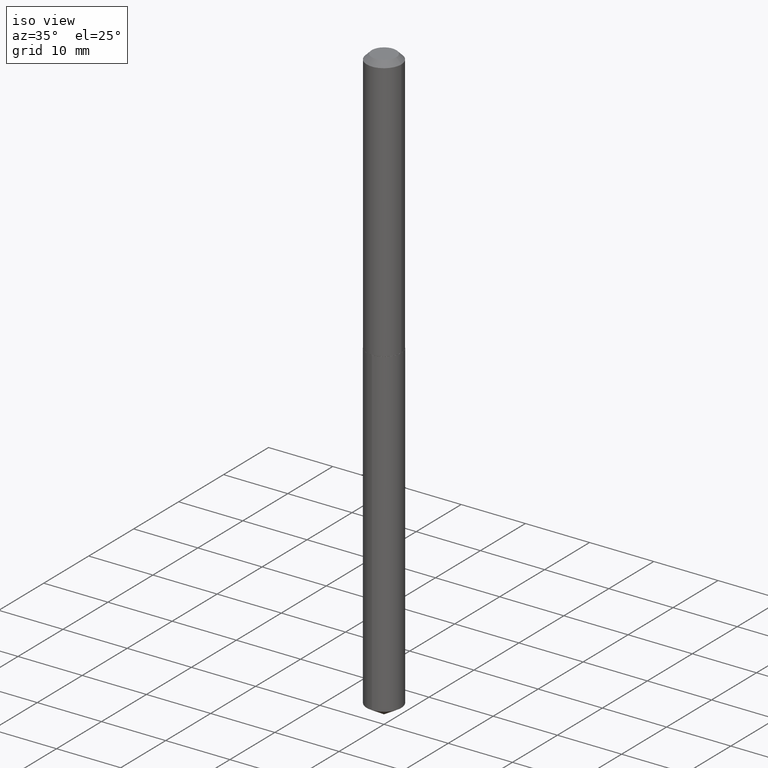
[diagram: clean part render]
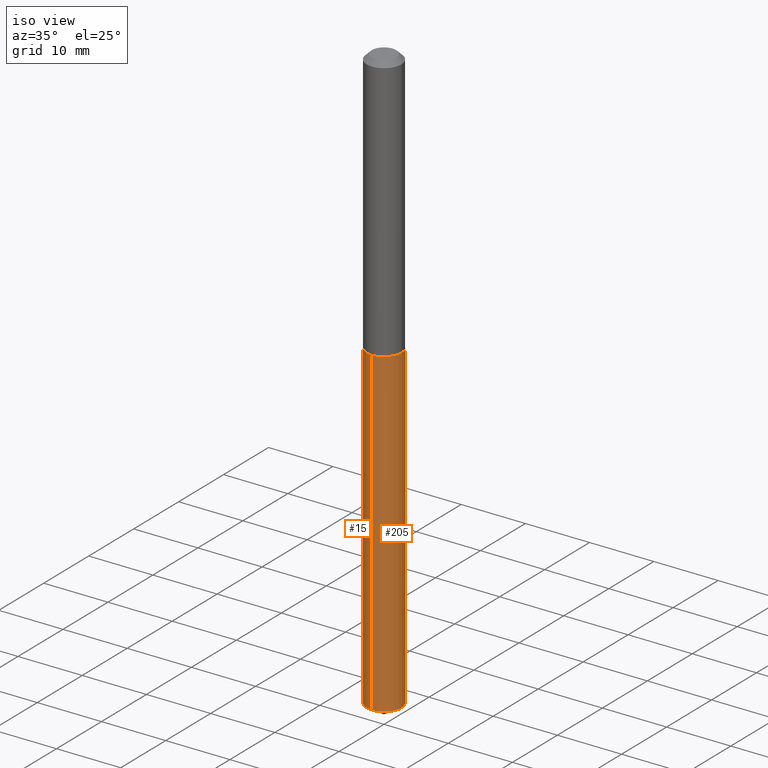
[diagram: same view with one multi-face feature highlighted, each face labeled with its STEP entity id]
A machine part, iso view. The highlighted faces form ONE feature: a constant-radius fillet chain: 2 tangent blend faces with common blend radius 2.7 mm. The faces share edges in the B-rep.
Their STEP definitions:
[1] entity #15 (Cylinder):
#1 = FACE_OUTER_BOUND ( 'NONE', #201, .T. ) ;
#10 = EDGE_CURVE ( 'NONE', #168, #197, #125, .T. ) ;
#11 = AXIS2_PLACEMENT_3D ( 'NONE', #97, #214, #69 ) ;
#14 = AXIS2_PLACEMENT_3D ( 'NONE', #47, #295, #145 ) ;
#15 = ADVANCED_FACE ( 'NONE', ( #1 ), #363, .T. ) ;
#16 = ORIENTED_EDGE ( 'NONE', *, *, #141, .F. ) ;
#38 = CARTESIAN_POINT ( 'NONE',  ( -7.422889326380102026E-16, -0.1063000000000056955, -1.629899999999999682 ) ) ;
#42 = VECTOR ( 'NONE', #309, 39.37007874015748143 ) ;
#43 = ORIENTED_EDGE ( 'NONE', *, *, #193, .T. ) ;
#47 = CARTESIAN_POINT ( 'NONE',  ( 3.985869607201153958E-29, -5.690765434180442948E-15, -1.629899999999999904 ) ) ;
#69 = DIRECTION ( 'NONE',  ( -6.982962677686265922E-15, -1.000000000000000000, 2.569941668545873170E-15 ) ) ;
#97 = CARTESIAN_POINT ( 'NONE',  ( 3.985869607201153958E-29, -5.690765434180442948E-15, -1.629899999999999904 ) ) ;
#106 = VERTEX_POINT ( 'NONE', #319 ) ;
#118 = DIRECTION ( 'NONE',  ( -2.445471064129030757E-29, 3.491478105338974747E-15, 1.000000000000000000 ) ) ;
#125 = LINE ( 'NONE', #241, #341 ) ;
#137 = CIRCLE ( 'NONE', #14, 0.1063000000000000056 ) ;
#141 = EDGE_CURVE ( 'NONE', #197, #294, #137, .T. ) ;
#145 = DIRECTION ( 'NONE',  ( -6.982962677686265922E-15, -1.000000000000000000, 2.569941668545873170E-15 ) ) ;
#146 = ORIENTED_EDGE ( 'NONE', *, *, #10, .F. ) ;
#168 = VERTEX_POINT ( 'NONE', #362 ) ;
#186 = EDGE_CURVE ( 'NONE', #106, #294, #189, .T. ) ;
#189 = LINE ( 'NONE', #242, #42 ) ;
#193 = EDGE_CURVE ( 'NONE', #168, #106, #277, .T. ) ;
#197 = VERTEX_POINT ( 'NONE', #343 ) ;
#201 = EDGE_LOOP ( 'NONE', ( #146, #43, #230, #16 ) ) ;
#214 = DIRECTION ( 'NONE',  ( -2.445471064129030757E-29, 3.491478105338975142E-15, 1.000000000000000000 ) ) ;
#230 = ORIENTED_EDGE ( 'NONE', *, *, #186, .T. ) ;
#241 = CARTESIAN_POINT ( 'NONE',  ( 7.553069281130262762E-16, 0.1062999999999943157, -1.629900000000000349 ) ) ;
#242 = CARTESIAN_POINT ( 'NONE',  ( -7.422889326380102026E-16, -0.1063000000000056955, -1.629899999999999682 ) ) ;
#277 = CIRCLE ( 'NONE', #361, 0.1063000000000000056 ) ;
#278 = DIRECTION ( 'NONE',  ( -6.982962677686265922E-15, -1.000000000000000000, 5.139883337091746339E-15 ) ) ;
#294 = VERTEX_POINT ( 'NONE', #38 ) ;
#295 = DIRECTION ( 'NONE',  ( -2.445471064129030757E-29, 3.491478105338975142E-15, 1.000000000000000000 ) ) ;
#304 = CARTESIAN_POINT ( 'NONE',  ( 8.797648208516961832E-29, -1.256069731792417687E-14, -3.597528516197369797 ) ) ;
#309 = DIRECTION ( 'NONE',  ( -2.445471064129030757E-29, 3.491478105338974747E-15, 1.000000000000000000 ) ) ;
#319 = CARTESIAN_POINT ( 'NONE',  ( -7.422889326379620821E-16, -0.1063000000000125511, -3.597528516197369353 ) ) ;
#341 = VECTOR ( 'NONE', #118, 39.37007874015748143 ) ;
#343 = CARTESIAN_POINT ( 'NONE',  ( 7.553069281130745939E-16, 0.1062999999999943018, -1.629900000000000349 ) ) ;
#361 = AXIS2_PLACEMENT_3D ( 'NONE', #304, #373, #278 ) ;
#362 = CARTESIAN_POINT ( 'NONE',  ( 7.553069281130741995E-16, 0.1062999999999874184, -3.597528516197370685 ) ) ;
#363 = CYLINDRICAL_SURFACE ( 'NONE', #11, 0.1063000000000000056 ) ;
#373 = DIRECTION ( 'NONE',  ( -2.445471064129030757E-29, 3.491478105338975142E-15, 1.000000000000000000 ) ) ;
[2] entity #205 (Cylinder):
#2 = DIRECTION ( 'NONE',  ( -2.445471064129030757E-29, 3.491478105338975142E-15, 1.000000000000000000 ) ) ;
#10 = EDGE_CURVE ( 'NONE', #168, #197, #125, .T. ) ;
#32 = DIRECTION ( 'NONE',  ( -2.445471064129030757E-29, 3.491478105338975142E-15, 1.000000000000000000 ) ) ;
#38 = CARTESIAN_POINT ( 'NONE',  ( -7.422889326380102026E-16, -0.1063000000000056955, -1.629899999999999682 ) ) ;
#42 = VECTOR ( 'NONE', #309, 39.37007874015748143 ) ;
#45 = EDGE_CURVE ( 'NONE', #294, #197, #246, .T. ) ;
#50 = EDGE_LOOP ( 'NONE', ( #233, #87, #340, #255 ) ) ;
#61 = AXIS2_PLACEMENT_3D ( 'NONE', #160, #32, #159 ) ;
#73 = CIRCLE ( 'NONE', #61, 0.1063000000000000056 ) ;
#78 = AXIS2_PLACEMENT_3D ( 'NONE', #200, #388, #109 ) ;
#87 = ORIENTED_EDGE ( 'NONE', *, *, #10, .T. ) ;
#106 = VERTEX_POINT ( 'NONE', #319 ) ;
#109 = DIRECTION ( 'NONE',  ( -6.982962677686265922E-15, -1.000000000000000000, 2.569941668545873170E-15 ) ) ;
#118 = DIRECTION ( 'NONE',  ( -2.445471064129030757E-29, 3.491478105338974747E-15, 1.000000000000000000 ) ) ;
#125 = LINE ( 'NONE', #241, #341 ) ;
#144 = AXIS2_PLACEMENT_3D ( 'NONE', #311, #2, #154 ) ;
#154 = DIRECTION ( 'NONE',  ( -6.982962677686265922E-15, -1.000000000000000000, 2.569941668545873170E-15 ) ) ;
#159 = DIRECTION ( 'NONE',  ( -6.982962677686265922E-15, -1.000000000000000000, 5.139883337091746339E-15 ) ) ;
#160 = CARTESIAN_POINT ( 'NONE',  ( 8.797648208516961832E-29, -1.256069731792417687E-14, -3.597528516197369797 ) ) ;
#168 = VERTEX_POINT ( 'NONE', #362 ) ;
#186 = EDGE_CURVE ( 'NONE', #106, #294, #189, .T. ) ;
#189 = LINE ( 'NONE', #242, #42 ) ;
#190 = CYLINDRICAL_SURFACE ( 'NONE', #144, 0.1063000000000000056 ) ;
#197 = VERTEX_POINT ( 'NONE', #343 ) ;
#200 = CARTESIAN_POINT ( 'NONE',  ( 3.985869607201153958E-29, -5.690765434180442948E-15, -1.629899999999999904 ) ) ;
#205 = ADVANCED_FACE ( 'NONE', ( #339 ), #190, .T. ) ;
#233 = ORIENTED_EDGE ( 'NONE', *, *, #372, .T. ) ;
#241 = CARTESIAN_POINT ( 'NONE',  ( 7.553069281130262762E-16, 0.1062999999999943157, -1.629900000000000349 ) ) ;
#242 = CARTESIAN_POINT ( 'NONE',  ( -7.422889326380102026E-16, -0.1063000000000056955, -1.629899999999999682 ) ) ;
#246 = CIRCLE ( 'NONE', #78, 0.1063000000000000056 ) ;
#255 = ORIENTED_EDGE ( 'NONE', *, *, #186, .F. ) ;
#294 = VERTEX_POINT ( 'NONE', #38 ) ;
#309 = DIRECTION ( 'NONE',  ( -2.445471064129030757E-29, 3.491478105338974747E-15, 1.000000000000000000 ) ) ;
#311 = CARTESIAN_POINT ( 'NONE',  ( 3.985869607201153958E-29, -5.690765434180442948E-15, -1.629899999999999904 ) ) ;
#319 = CARTESIAN_POINT ( 'NONE',  ( -7.422889326379620821E-16, -0.1063000000000125511, -3.597528516197369353 ) ) ;
#339 = FACE_OUTER_BOUND ( 'NONE', #50, .T. ) ;
#340 = ORIENTED_EDGE ( 'NONE', *, *, #45, .F. ) ;
#341 = VECTOR ( 'NONE', #118, 39.37007874015748143 ) ;
#343 = CARTESIAN_POINT ( 'NONE',  ( 7.553069281130745939E-16, 0.1062999999999943018, -1.629900000000000349 ) ) ;
#362 = CARTESIAN_POINT ( 'NONE',  ( 7.553069281130741995E-16, 0.1062999999999874184, -3.597528516197370685 ) ) ;
#372 = EDGE_CURVE ( 'NONE', #106, #168, #73, .T. ) ;
#388 = DIRECTION ( 'NONE',  ( -2.445471064129030757E-29, 3.491478105338975142E-15, 1.000000000000000000 ) ) ;